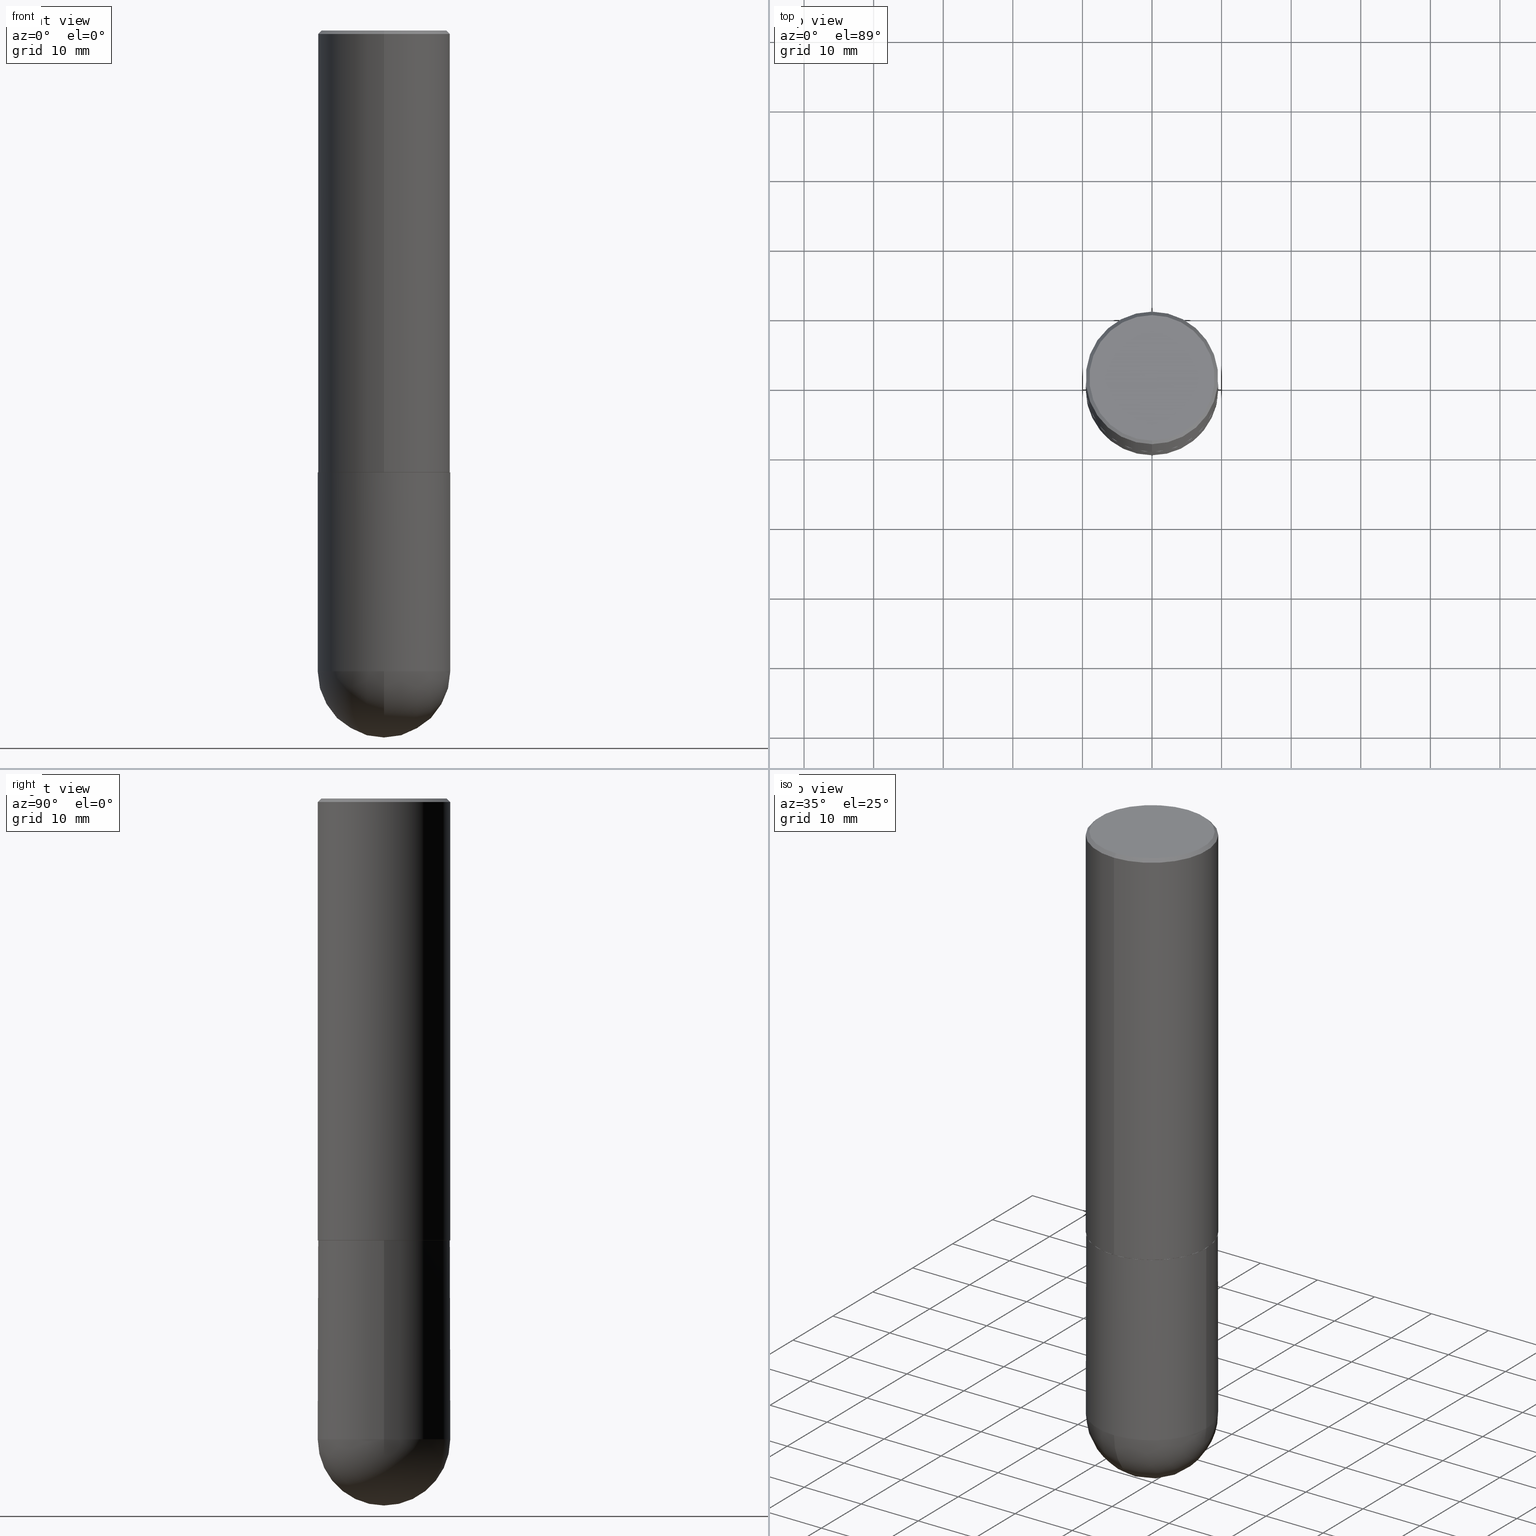
[diagram: canonical four-view strip — front | top / right | iso, engineering-drawing reading convention]
A machine part, canonical four-view strip (front | top / right | iso — engineering-drawing reading convention). The complete STEP part file that produces these views, byte-faithful:
ISO-10303-21;
HEADER;
FILE_DESCRIPTION (( 'STEP AP203' ),
    '1' );
FILE_NAME ('30940.STEP',
    '2024-02-21T16:46:39',
    ( '' ),
    ( '' ),
    'SwSTEP 2.0',
    'SolidWorks 2023',
    '' );
FILE_SCHEMA (( 'CONFIG_CONTROL_DESIGN' ));
ENDSEC;

DATA;
#1 = CARTESIAN_POINT ( 'NONE',  ( 2.618611004132350411E-15, 0.3749999999999999445, -0.02000000000000139513 ) ) ;
#2 = EDGE_CURVE ( 'NONE', #301, #194, #386, .T. ) ;
#3 = DIRECTION ( 'NONE',  ( -6.982962677686265922E-15, -1.000000000000000000, 3.494488891895536035E-15 ) ) ;
#4 = DIRECTION ( 'NONE',  ( 2.445579214634029192E-29, -3.491323227660272783E-15, -1.000000000000000000 ) ) ;
#5 = DIRECTION ( 'NONE',  ( -2.445579214634029192E-29, 3.491323227660272783E-15, 1.000000000000000000 ) ) ;
#6 = DIRECTION ( 'NONE',  ( -4.851104656540957175E-15, -0.7071067811865490160, -0.7071067811865460184 ) ) ;
#7 = APPROVAL_PERSON_ORGANIZATION ( #340, #211, #141 ) ;
#8 = CARTESIAN_POINT ( 'NONE',  ( 4.891158429268078912E-31, -6.982646455320575000E-17, -0.02000000000000008715 ) ) ;
#9 = LINE ( 'NONE', #128, #226 ) ;
#10 = CARTESIAN_POINT ( 'NONE',  ( 6.113672015462842613E-29, -8.728703347107864943E-15, -2.500000000000000000 ) ) ;
#11 = CYLINDRICAL_SURFACE ( 'NONE', #352, 0.3750000000000001110 ) ;
#12 = FACE_OUTER_BOUND ( 'NONE', #148, .T. ) ;
#13 = AXIS2_PLACEMENT_3D ( 'NONE', #245, #341, #19 ) ;
#14 = APPROVAL_PERSON_ORGANIZATION ( #210, #328, #244 ) ;
#15 = ORIENTED_EDGE ( 'NONE', *, *, #27, .T. ) ;
#16 = EDGE_CURVE ( 'NONE', #88, #28, #69, .T. ) ;
#17 = AXIS2_PLACEMENT_3D ( 'NONE', #172, #281, #31 ) ;
#18 = VERTEX_POINT ( 'NONE', #180 ) ;
#19 = DIRECTION ( 'NONE',  ( 1.000000000000000000, -6.982962677686265922E-15, 0.000000000000000000 ) ) ;
#20 = ORIENTED_EDGE ( 'NONE', *, *, #398, .T. ) ;
#21 = FACE_OUTER_BOUND ( 'NONE', #166, .T. ) ;
#22 = LOCAL_TIME ( 11, 46, 39.00000000000000000, #376 ) ;
#23 = DATE_AND_TIME ( #364, #22 ) ;
#24 = ORIENTED_EDGE ( 'NONE', *, *, #81, .F. ) ;
#25 = CARTESIAN_POINT ( 'NONE',  ( 2.478951750578623420E-15, 0.3549999999999998157, -1.156211816997397957E-15 ) ) ;
#26 = PERSON_AND_ORGANIZATION_ROLE ( 'creator' ) ;
#27 = EDGE_CURVE ( 'NONE', #111, #194, #61, .T. ) ;
#28 = VERTEX_POINT ( 'NONE', #345 ) ;
#29 = CARTESIAN_POINT ( 'NONE',  ( 2.618611004132438763E-15, 0.3749999999999873990, -3.625000000000000888 ) ) ;
#30 = SPHERICAL_SURFACE ( 'NONE', #106, 0.3750000000000003886 ) ;
#31 = DIRECTION ( 'NONE',  ( 1.000000000000000000, -6.982962677686265922E-15, 0.000000000000000000 ) ) ;
#32 = CIRCLE ( 'NONE', #97, 0.3750000000000002776 ) ;
#33 = FACE_OUTER_BOUND ( 'NONE', #314, .T. ) ;
#34 = ADVANCED_FACE ( 'NONE', ( #49 ), #171, .F. ) ;
#35 = CARTESIAN_POINT ( 'NONE',  ( 0.3750000000000000555, -1.134731435124021338E-14, -2.500000000000000000 ) ) ;
#36 = CARTESIAN_POINT ( 'NONE',  ( 6.111502457370440261E-29, -8.724816745923021924E-15, -2.499000000000000110 ) ) ;
#37 = CARTESIAN_POINT ( 'NONE',  ( 6.113672015462842613E-29, -8.728703347107864943E-15, -2.500000000000000000 ) ) ;
#38 = CARTESIAN_POINT ( 'NONE',  ( 2.664535259100376486E-15, 0.3750000000000001665, -1.309246210372602885E-15 ) ) ;
#39 = AXIS2_PLACEMENT_3D ( 'NONE', #312, #59, #350 ) ;
#40 = CARTESIAN_POINT ( 'NONE',  ( 0.000000000000000000, 0.000000000000000000, 0.000000000000000000 ) ) ;
#41 = DIRECTION ( 'NONE',  ( 1.000000000000000000, -6.982962677686264344E-15, 0.000000000000000000 ) ) ;
#42 = EDGE_LOOP ( 'NONE', ( #78, #80, #182, #280, #337 ) ) ;
#43 = ORIENTED_EDGE ( 'NONE', *, *, #356, .F. ) ;
#44 = DIRECTION ( 'NONE',  ( 0.000000000000000000, 0.000000000000000000, 1.000000000000000000 ) ) ;
#45 = CC_DESIGN_DATE_AND_TIME_ASSIGNMENT ( #305, #399, ( #362 ) ) ;
#46 = ORIENTED_EDGE ( 'NONE', *, *, #191, .T. ) ;
#47 = AXIS2_PLACEMENT_3D ( 'NONE', #225, #121, #95 ) ;
#48 = PERSON_AND_ORGANIZATION_ROLE ( 'design_supplier' ) ;
#49 = FACE_OUTER_BOUND ( 'NONE', #299, .T. ) ;
#50 = PERSON_AND_ORGANIZATION_ROLE ( 'design_owner' ) ;
#51 = ORIENTED_EDGE ( 'NONE', *, *, #321, .F. ) ;
#52 = EDGE_CURVE ( 'NONE', #18, #397, #365, .T. ) ;
#53 = ORIENTED_EDGE ( 'NONE', *, *, #191, .F. ) ;
#54 = LINE ( 'NONE', #1, #378 ) ;
#55 = AXIS2_PLACEMENT_3D ( 'NONE', #379, #277, #241 ) ;
#56 = AXIS2_PLACEMENT_3D ( 'NONE', #8, #4, #255 ) ;
#57 = ORIENTED_EDGE ( 'NONE', *, *, #339, .F. ) ;
#58 = DIRECTION ( 'NONE',  ( -2.445579214634028631E-29, 3.491323227660273177E-15, 1.000000000000000000 ) ) ;
#59 = DIRECTION ( 'NONE',  ( -2.445468806185136597E-29, 3.491481338843145583E-15, 1.000000000000000000 ) ) ;
#60 = CARTESIAN_POINT ( 'NONE',  ( -2.664535259100290106E-15, -0.3750000000000131006, -3.624999999999998668 ) ) ;
#61 = CIRCLE ( 'NONE', #198, 0.3750000000000003886 ) ;
#62 = CARTESIAN_POINT ( 'NONE',  ( 2.548781377355487113E-15, 0.3549999999999998157, -1.073003888175400197E-15 ) ) ;
#63 = CARTESIAN_POINT ( 'NONE',  ( 6.113948036585074240E-29, -8.728308069150681957E-15, -2.500000000000000000 ) ) ;
#64 = CARTESIAN_POINT ( 'NONE',  ( 9.466789814748773816E-29, -1.441714559602862136E-14, -4.000000000000000000 ) ) ;
#65 = DIRECTION ( 'NONE',  ( 6.982962677686265922E-15, 1.000000000000000000, 0.000000000000000000 ) ) ;
#66 = CIRCLE ( 'NONE', #288, 0.3549999999999998157 ) ;
#67 = ADVANCED_FACE ( 'NONE', ( #269 ), #366, .T. ) ;
#68 = ORIENTED_EDGE ( 'NONE', *, *, #297, .T. ) ;
#69 = CIRCLE ( 'NONE', #55, 0.3549999999999998157 ) ;
#70 = CONICAL_SURFACE ( 'NONE', #47, 0.3739999999999999991, 0.7853981633976873100 ) ;
#71 = ORIENTED_EDGE ( 'NONE', *, *, #333, .F. ) ;
#72 = PERSON ( 'UNSPECIFIED', 'UNSPECIFIED', 'UNSPECIFIED', ('UNSPECIFIED'), ('UNSPECIFIED'), ('UNSPECIFIED') ) ;
#73 = COORDINATED_UNIVERSAL_TIME_OFFSET ( 5, 0, .BEHIND. ) ;
#74 = ORIENTED_EDGE ( 'NONE', *, *, #155, .F. ) ;
#75 = LINE ( 'NONE', #112, #263 ) ;
#76 = AXIS2_PLACEMENT_3D ( 'NONE', #215, #401, #404 ) ;
#77 = APPROVAL_DATE_TIME ( #395, #116 ) ;
#78 = ORIENTED_EDGE ( 'NONE', *, *, #123, .F. ) ;
#79 = CARTESIAN_POINT ( 'NONE',  ( 2.618611004132411153E-15, 0.3749999999999912847, -2.500000000000001332 ) ) ;
#80 = ORIENTED_EDGE ( 'NONE', *, *, #2, .T. ) ;
#81 = EDGE_CURVE ( 'NONE', #397, #369, #235, .T. ) ;
#82 = DIRECTION ( 'NONE',  ( 1.000000000000000000, 0.000000000000000000, 0.000000000000000000 ) ) ;
#83 = DIRECTION ( 'NONE',  ( -7.105427357600999492E-15, -1.000000000000000000, 0.000000000000000000 ) ) ;
#84 = PLANE ( 'NONE',  #219 ) ;
#85 = DATE_TIME_ROLE ( 'creation_date' ) ;
#86 = AXIS2_PLACEMENT_3D ( 'NONE', #342, #303, #334 ) ;
#87 = DATE_AND_TIME ( #405, #259 ) ;
#88 = VERTEX_POINT ( 'NONE', #62 ) ;
#89 = CARTESIAN_POINT ( 'NONE',  ( 0.000000000000000000, 0.000000000000000000, 0.000000000000000000 ) ) ;
#90 = DIRECTION ( 'NONE',  ( -2.445468806185136877E-29, 3.491481338843145188E-15, 1.000000000000000000 ) ) ;
#91 = AXIS2_PLACEMENT_3D ( 'NONE', #92, #382, #65 ) ;
#92 = CARTESIAN_POINT ( 'NONE',  ( 8.533704644507233916E-29, -1.313080222144645289E-14, -3.624999999999999556 ) ) ;
#93 = CARTESIAN_POINT ( 'NONE',  ( -0.3750000000000001110, 2.664535259100376486E-15, -1.844600658845590159E-29 ) ) ;
#94 = CC_DESIGN_PERSON_AND_ORGANIZATION_ASSIGNMENT ( #104, #48, ( #125 ) ) ;
#95 = DIRECTION ( 'NONE',  ( -6.982962677686266711E-15, -1.000000000000000000, 2.921762560068730595E-15 ) ) ;
#96 = DIRECTION ( 'NONE',  ( -2.445579214634028911E-29, 3.491323227660273177E-15, 1.000000000000000000 ) ) ;
#97 = AXIS2_PLACEMENT_3D ( 'NONE', #36, #222, #127 ) ;
#98 = ORIENTED_EDGE ( 'NONE', *, *, #290, .T. ) ;
#99 = EDGE_CURVE ( 'NONE', #327, #369, #358, .T. ) ;
#100 = ORIENTED_EDGE ( 'NONE', *, *, #297, .F. ) ;
#101 = ORIENTED_EDGE ( 'NONE', *, *, #52, .T. ) ;
#102 = PERSON_AND_ORGANIZATION ( #72, #130 ) ;
#103 = ORIENTED_EDGE ( 'NONE', *, *, #271, .T. ) ;
#104 = PERSON_AND_ORGANIZATION ( #72, #130 ) ;
#105 = CARTESIAN_POINT ( 'NONE',  ( -2.618611004132351200E-15, -0.3750000000000001665, 1.309246210372602885E-15 ) ) ;
#106 = AXIS2_PLACEMENT_3D ( 'NONE', #289, #320, #120 ) ;
#107 =( CONVERSION_BASED_UNIT ( 'INCH', #270 ) LENGTH_UNIT ( ) NAMED_UNIT ( #230 ) );
#108 = AXIS2_PLACEMENT_3D ( 'NONE', #89, #216, #351 ) ;
#109 = ORIENTED_EDGE ( 'NONE', *, *, #356, .T. ) ;
#110 = DIRECTION ( 'NONE',  ( 6.982962677686265922E-15, 1.000000000000000000, -3.491323227660273177E-15 ) ) ;
#111 = VERTEX_POINT ( 'NONE', #64 ) ;
#112 = CARTESIAN_POINT ( 'NONE',  ( -2.611628041454602471E-15, -0.3740000000000087699, -2.499999999999999112 ) ) ;
#113 = DATE_AND_TIME ( #335, #186 ) ;
#114 = ORIENTED_EDGE ( 'NONE', *, *, #161, .F. ) ;
#115 = CARTESIAN_POINT ( 'NONE',  ( 2.660982545421636724E-15, 0.3739999999999912839, -2.500000000000001332 ) ) ;
#116 = APPROVAL ( #266, 'UNSPECIFIED' ) ;
#117 = CIRCLE ( 'NONE', #359, 0.3750000000000000555 ) ;
#118 = DIRECTION ( 'NONE',  ( 1.000000000000000000, -6.982962677686264344E-15, 0.000000000000000000 ) ) ;
#119 = CARTESIAN_POINT ( 'NONE',  ( 6.111502457370440261E-29, -8.724816745923021924E-15, -2.499000000000000110 ) ) ;
#120 = DIRECTION ( 'NONE',  ( 6.982962677686266711E-15, 1.000000000000000000, -2.913971193241878005E-15 ) ) ;
#121 = DIRECTION ( 'NONE',  ( -2.445579214634029192E-29, 3.491323227660272783E-15, 1.000000000000000000 ) ) ;
#122 = DIRECTION ( 'NONE',  ( 5.024295867789263036E-15, 0.7071067811867189912, 0.7071067811863760433 ) ) ;
#123 = EDGE_CURVE ( 'NONE', #301, #228, #160, .T. ) ;
#124 = AXIS2_PLACEMENT_3D ( 'NONE', #355, #152, #412 ) ;
#125 = PRODUCT_DEFINITION_FORMATION_WITH_SPECIFIED_SOURCE ( 'ANY', '', #349, .NOT_KNOWN. ) ;
#126 = DIRECTION ( 'NONE',  ( -1.000000000000000000, 6.982962677686266711E-15, -4.883557194083113462E-29 ) ) ;
#127 = DIRECTION ( 'NONE',  ( -6.982962677686266711E-15, -1.000000000000000000, 2.913971193241878794E-15 ) ) ;
#128 = CARTESIAN_POINT ( 'NONE',  ( 0.3750000000000001110, -2.618611004132350411E-15, 1.828566290923476483E-29 ) ) ;
#129 = CARTESIAN_POINT ( 'NONE',  ( -2.611628041454602471E-15, -0.3740000000000087699, -2.499999999999999112 ) ) ;
#130 = ORGANIZATION ( 'UNSPECIFIED', 'UNSPECIFIED', '' ) ;
#131 = CC_DESIGN_APPROVAL ( #211, ( #362 ) ) ;
#132 = ORIENTED_EDGE ( 'NONE', *, *, #323, .T. ) ;
#133 = CLOSED_SHELL ( 'NONE', ( #167, #187, #140, #391, #223 ) ) ;
#134 = ORIENTED_EDGE ( 'NONE', *, *, #323, .F. ) ;
#135 = EDGE_CURVE ( 'NONE', #28, #397, #282, .T. ) ;
#136 = ORIENTED_EDGE ( 'NONE', *, *, #168, .F. ) ;
#137 = APPLICATION_PROTOCOL_DEFINITION ( 'international standard', 'config_control_design', 1994, #195 ) ;
#138 = DIRECTION ( 'NONE',  ( -2.445579214634028911E-29, 3.491323227660273177E-15, 1.000000000000000000 ) ) ;
#139 = CARTESIAN_POINT ( 'NONE',  ( 0.000000000000000000, 0.000000000000000000, 0.000000000000000000 ) ) ;
#140 = ADVANCED_FACE ( 'NONE', ( #357 ), #30, .T. ) ;
#141 = APPROVAL_ROLE ( '' ) ;
#142 = ORIENTED_EDGE ( 'NONE', *, *, #16, .T. ) ;
#143 = DIRECTION ( 'NONE',  ( 2.445579214634028631E-29, -3.491323227660273177E-15, -1.000000000000000000 ) ) ;
#144 = APPROVAL_PERSON_ORGANIZATION ( #373, #116, #275 ) ;
#145 = APPROVAL_DATE_TIME ( #23, #328 ) ;
#146 = VERTEX_POINT ( 'NONE', #35 ) ;
#147 = CARTESIAN_POINT ( 'NONE',  ( 2.618611004132350411E-15, 0.3749999999999999445, -0.02000000000000139513 ) ) ;
#148 = EDGE_LOOP ( 'NONE', ( #74, #68, #132, #406 ) ) ;
#149 = EDGE_CURVE ( 'NONE', #387, #146, #9, .T. ) ;
#150 = DIRECTION ( 'NONE',  ( -2.445579214634029192E-29, 3.491323227660272783E-15, 1.000000000000000000 ) ) ;
#151 = DESIGN_CONTEXT ( 'detailed design', #389, 'design' ) ;
#152 = DIRECTION ( 'NONE',  ( -2.445468806185136597E-29, 3.491481338843145583E-15, 1.000000000000000000 ) ) ;
#153 = CARTESIAN_POINT ( 'NONE',  ( 0.3750000000000001110, -1.331127260433948773E-14, -3.624999999999999556 ) ) ;
#154 = CARTESIAN_POINT ( 'NONE',  ( -2.572686749164323547E-15, -0.3750000000000001110, -0.01999999999999877570 ) ) ;
#155 = EDGE_CURVE ( 'NONE', #400, #327, #318, .T. ) ;
#156 = SPHERICAL_SURFACE ( 'NONE', #394, 0.3750000000000003886 ) ;
#157 = DIRECTION ( 'NONE',  ( -2.445468806185136597E-29, 3.491481338843145583E-15, 1.000000000000000000 ) ) ;
#158 = VECTOR ( 'NONE', #96, 39.37007874015748143 ) ;
#159 = CONICAL_SURFACE ( 'NONE', #56, 0.3750000000000000555, 0.7853981633974469467 ) ;
#160 = LINE ( 'NONE', #93, #402 ) ;
#161 = EDGE_CURVE ( 'NONE', #111, #307, #218, .T. ) ;
#162 = DIRECTION ( 'NONE',  ( -2.445468806185136597E-29, 3.491481338843145583E-15, 1.000000000000000000 ) ) ;
#163 = CARTESIAN_POINT ( 'NONE',  ( -0.3750000000000000555, -8.028126341106755702E-15, -2.500000000000000000 ) ) ;
#164 = CLOSED_SHELL ( 'NONE', ( #311, #315, #67, #261, #192, #296, #34, #353 ) ) ;
#165 = AXIS2_PLACEMENT_3D ( 'NONE', #37, #249, #118 ) ;
#166 = EDGE_LOOP ( 'NONE', ( #142, #98 ) ) ;
#167 = ADVANCED_FACE ( 'NONE', ( #221 ), #220, .T. ) ;
#168 = EDGE_CURVE ( 'NONE', #232, #400, #304, .T. ) ;
#169 = ORIENTED_EDGE ( 'NONE', *, *, #368, .F. ) ;
#170 = CIRCLE ( 'NONE', #258, 0.3750000000000002776 ) ;
#171 = PLANE ( 'NONE',  #317 ) ;
#172 = CARTESIAN_POINT ( 'NONE',  ( 8.864824422421120163E-29, -1.265661985330640259E-14, -3.624999999999999556 ) ) ;
#173 = CALENDAR_DATE ( 2024, 21, 2 ) ;
#174 = ORIENTED_EDGE ( 'NONE', *, *, #99, .T. ) ;
#175 = DIRECTION ( 'NONE',  ( -6.982962677686266711E-15, -1.000000000000000000, 2.921762560068730595E-15 ) ) ;
#176 = EDGE_LOOP ( 'NONE', ( #302, #20, #101, #169 ) ) ;
#177 = CARTESIAN_POINT ( 'NONE',  ( -0.3750000000000001110, -8.028126341106758858E-15, -3.624999999999999556 ) ) ;
#178 = LOCAL_TIME ( 11, 46, 39.00000000000000000, #181 ) ;
#179 = APPROVAL_STATUS ( 'not_yet_approved' ) ;
#180 = CARTESIAN_POINT ( 'NONE',  ( -2.618611004132290852E-15, -0.3750000000000090483, -2.498999999999999222 ) ) ;
#181 = COORDINATED_UNIVERSAL_TIME_OFFSET ( 5, 0, .BEHIND. ) ;
#182 = ORIENTED_EDGE ( 'NONE', *, *, #333, .T. ) ;
#183 = FACE_OUTER_BOUND ( 'NONE', #233, .T. ) ;
#184 = CARTESIAN_POINT ( 'NONE',  ( 4.891158429268078912E-31, -6.982646455320575000E-17, -0.02000000000000008715 ) ) ;
#185 = AXIS2_PLACEMENT_3D ( 'NONE', #184, #285, #381 ) ;
#186 = LOCAL_TIME ( 11, 46, 39.00000000000000000, #73 ) ;
#187 = ADVANCED_FACE ( 'NONE', ( #33 ), #156, .T. ) ;
#188 = DIRECTION ( 'NONE',  ( -2.445579214634029192E-29, 3.491323227660272783E-15, 1.000000000000000000 ) ) ;
#189 = CARTESIAN_POINT ( 'NONE',  ( 4.891158429268078912E-31, -6.982646455320575000E-17, -0.02000000000000008715 ) ) ;
#190 = DIRECTION ( 'NONE',  ( -2.445468806185136877E-29, 3.491481338843145188E-15, 1.000000000000000000 ) ) ;
#191 = EDGE_CURVE ( 'NONE', #146, #228, #227, .T. ) ;
#192 = ADVANCED_FACE ( 'NONE', ( #247 ), #384, .T. ) ;
#193 = CC_DESIGN_PERSON_AND_ORGANIZATION_ASSIGNMENT ( #279, #50, ( #349 ) ) ;
#194 = VERTEX_POINT ( 'NONE', #60 ) ;
#195 = APPLICATION_CONTEXT ( 'configuration controlled 3d designs of mechanical parts and assemblies' ) ;
#196 = EDGE_LOOP ( 'NONE', ( #310, #371, #51, #71 ) ) ;
#197 = CARTESIAN_POINT ( 'NONE',  ( 0.000000000000000000, 0.000000000000000000, 0.000000000000000000 ) ) ;
#198 = AXIS2_PLACEMENT_3D ( 'NONE', #214, #374, #83 ) ;
#199 = ORIENTED_EDGE ( 'NONE', *, *, #271, .F. ) ;
#200 =( LENGTH_UNIT ( ) NAMED_UNIT ( * ) SI_UNIT ( $, .METRE. ) );
#201 = PERSON_AND_ORGANIZATION ( #72, #130 ) ;
#202 = ORIENTED_EDGE ( 'NONE', *, *, #290, .F. ) ;
#203 = MANIFOLD_SOLID_BREP ( 'Body-Move/Copy2[2]', #164 ) ;
#204 = ORIENTED_EDGE ( 'NONE', *, *, #135, .T. ) ;
#205 = DIRECTION ( 'NONE',  ( -4.937700262165728178E-15, -0.7071067811867141062, 0.7071067811863809283 ) ) ;
#206 = ORIENTED_EDGE ( 'NONE', *, *, #52, .F. ) ;
#207 = DIRECTION ( 'NONE',  ( 4.937700262164540942E-15, 0.7071067811865441310, -0.7071067811865509034 ) ) ;
#208 = PRODUCT_DEFINITION_SHAPE ( 'NONE', 'NONE',  #347 ) ;
#209 = CONICAL_SURFACE ( 'NONE', #76, 0.3739999999999999991, 0.7853981633976873100 ) ;
#210 = PERSON_AND_ORGANIZATION ( #72, #130 ) ;
#211 = APPROVAL ( #179, 'UNSPECIFIED' ) ;
#212 = UNCERTAINTY_MEASURE_WITH_UNIT (LENGTH_MEASURE( 1.000000000000000082E-05 ), #107, 'distance_accuracy_value', 'NONE');
#213 = SHAPE_DEFINITION_REPRESENTATION ( #208, #246 ) ;
#214 = CARTESIAN_POINT ( 'NONE',  ( 8.533704644507233916E-29, -1.313080222144645289E-14, -3.624999999999999556 ) ) ;
#215 = CARTESIAN_POINT ( 'NONE',  ( 6.113948036585074240E-29, -8.728308069150681957E-15, -2.500000000000000000 ) ) ;
#216 = DIRECTION ( 'NONE',  ( -2.445579214634029192E-29, 3.491323227660272783E-15, 1.000000000000000000 ) ) ;
#217 = CC_DESIGN_PERSON_AND_ORGANIZATION_ASSIGNMENT ( #201, #26, ( #347 ) ) ;
#218 = CIRCLE ( 'NONE', #91, 0.3750000000000003886 ) ;
#219 = AXIS2_PLACEMENT_3D ( 'NONE', #79, #239, #283 ) ;
#220 = CYLINDRICAL_SURFACE ( 'NONE', #124, 0.3750000000000001110 ) ;
#221 = FACE_OUTER_BOUND ( 'NONE', #273, .T. ) ;
#222 = DIRECTION ( 'NONE',  ( -2.445579214634029192E-29, 3.491323227660272783E-15, 1.000000000000000000 ) ) ;
#223 = ADVANCED_FACE ( 'NONE', ( #291 ), #11, .T. ) ;
#224 = CARTESIAN_POINT ( 'NONE',  ( 2.657429831742835431E-15, 0.3739999999999912839, -2.500000000000001332 ) ) ;
#225 = CARTESIAN_POINT ( 'NONE',  ( 6.113948036585074240E-29, -8.728308069150681957E-15, -2.500000000000000000 ) ) ;
#226 = VECTOR ( 'NONE', #190, 39.37007874015748143 ) ;
#227 = CIRCLE ( 'NONE', #165, 0.3750000000000000555 ) ;
#228 = VERTEX_POINT ( 'NONE', #163 ) ;
#229 = ORIENTED_EDGE ( 'NONE', *, *, #2, .F. ) ;
#230 = DIMENSIONAL_EXPONENTS ( 1.000000000000000000, 0.000000000000000000, 0.000000000000000000, 0.000000000000000000, 0.000000000000000000, 0.000000000000000000, 0.000000000000000000 ) ;
#231 = CIRCLE ( 'NONE', #272, 0.3750000000000000555 ) ;
#232 = VERTEX_POINT ( 'NONE', #129 ) ;
#233 = EDGE_LOOP ( 'NONE', ( #103, #174, #24, #206 ) ) ;
#234 = COORDINATED_UNIVERSAL_TIME_OFFSET ( 5, 0, .BEHIND. ) ;
#235 = CIRCLE ( 'NONE', #343, 0.3750000000000000555 ) ;
#236 = CIRCLE ( 'NONE', #411, 0.3739999999999999991 ) ;
#237 = ORIENTED_EDGE ( 'NONE', *, *, #339, .T. ) ;
#238 = EDGE_LOOP ( 'NONE', ( #260, #363, #237, #293 ) ) ;
#239 = DIRECTION ( 'NONE',  ( 2.438088387897960049E-29, -3.491481338843145188E-15, -1.000000000000000000 ) ) ;
#240 = APPROVAL_DATE_TIME ( #87, #211 ) ;
#241 = DIRECTION ( 'NONE',  ( -6.982962677686266711E-15, -1.000000000000000000, 3.491323227660273177E-15 ) ) ;
#242 = DIRECTION ( 'NONE',  ( -2.445579214634029192E-29, 3.491323227660272783E-15, 1.000000000000000000 ) ) ;
#243 = EDGE_CURVE ( 'NONE', #228, #146, #231, .T. ) ;
#244 = APPROVAL_ROLE ( '' ) ;
#245 = CARTESIAN_POINT ( 'NONE',  ( 8.864824422421120163E-29, -1.265661985330640259E-14, -3.624999999999999556 ) ) ;
#246 = ADVANCED_BREP_SHAPE_REPRESENTATION ( '30940', ( #354, #203, #306 ), #388 ) ;
#247 = FACE_OUTER_BOUND ( 'NONE', #176, .T. ) ;
#248 = DIRECTION ( 'NONE',  ( -6.982962677686266711E-15, -1.000000000000000000, 2.913971193241878794E-15 ) ) ;
#249 = DIRECTION ( 'NONE',  ( -2.445468806185136597E-29, 3.491481338843145583E-15, 1.000000000000000000 ) ) ;
#250 = VECTOR ( 'NONE', #122, 39.37007874015748143 ) ;
#251 = AXIS2_PLACEMENT_3D ( 'NONE', #139, #242, #370 ) ;
#252 = DIRECTION ( 'NONE',  ( 6.982962677686266711E-15, 1.000000000000000000, -2.913971193241878005E-15 ) ) ;
#253 = DIRECTION ( 'NONE',  ( -2.445579214634029192E-29, 3.491323227660272783E-15, 1.000000000000000000 ) ) ;
#254 = PRODUCT_RELATED_PRODUCT_CATEGORY ( 'detail', '', ( #349 ) ) ;
#255 = DIRECTION ( 'NONE',  ( 6.982962677686265922E-15, 1.000000000000000000, -3.494488891895536035E-15 ) ) ;
#256 = ORIENTED_EDGE ( 'NONE', *, *, #321, .T. ) ;
#257 = CARTESIAN_POINT ( 'NONE',  ( 6.113948036585074240E-29, -8.728308069150681957E-15, -2.500000000000000000 ) ) ;
#258 = AXIS2_PLACEMENT_3D ( 'NONE', #119, #410, #248 ) ;
#259 = LOCAL_TIME ( 11, 46, 39.00000000000000000, #313 ) ;
#260 = ORIENTED_EDGE ( 'NONE', *, *, #135, .F. ) ;
#261 = ADVANCED_FACE ( 'NONE', ( #286 ), #159, .T. ) ;
#262 = VECTOR ( 'NONE', #6, 39.37007874015748143 ) ;
#263 = VECTOR ( 'NONE', #205, 39.37007874015748143 ) ;
#264 = CC_DESIGN_SECURITY_CLASSIFICATION ( #362, ( #125 ) ) ;
#265 = CC_DESIGN_PERSON_AND_ORGANIZATION_ASSIGNMENT ( #102, #276, ( #362 ) ) ;
#266 = APPROVAL_STATUS ( 'not_yet_approved' ) ;
#267 = DIRECTION ( 'NONE',  ( -6.982962677686265922E-15, -1.000000000000000000, 3.491323227660273177E-15 ) ) ;
#268 = MECHANICAL_CONTEXT ( 'NONE', #195, 'mechanical' ) ;
#269 = FACE_OUTER_BOUND ( 'NONE', #329, .T. ) ;
#270 = LENGTH_MEASURE_WITH_UNIT ( LENGTH_MEASURE( 0.02539999999999999897 ), #200 );
#271 = EDGE_CURVE ( 'NONE', #18, #327, #32, .T. ) ;
#272 = AXIS2_PLACEMENT_3D ( 'NONE', #10, #157, #41 ) ;
#273 = EDGE_LOOP ( 'NONE', ( #109, #360, #53, #403, #256 ) ) ;
#274 = CARTESIAN_POINT ( 'NONE',  ( 4.891158429268078912E-31, -6.982646455320575000E-17, -0.02000000000000008715 ) ) ;
#275 = APPROVAL_ROLE ( '' ) ;
#276 = PERSON_AND_ORGANIZATION_ROLE ( 'classification_officer' ) ;
#277 = DIRECTION ( 'NONE',  ( -2.445579214634029192E-29, 3.491323227660272783E-15, 1.000000000000000000 ) ) ;
#278 = FACE_OUTER_BOUND ( 'NONE', #409, .T. ) ;
#279 = PERSON_AND_ORGANIZATION ( #72, #130 ) ;
#280 = ORIENTED_EDGE ( 'NONE', *, *, #149, .T. ) ;
#281 = DIRECTION ( 'NONE',  ( -2.445468806185136597E-29, 3.491481338843145583E-15, 1.000000000000000000 ) ) ;
#282 = LINE ( 'NONE', #154, #262 ) ;
#283 = DIRECTION ( 'NONE',  ( -1.000000000000000000, 6.982962677686265922E-15, -4.876176775795935793E-29 ) ) ;
#284 = CC_DESIGN_DATE_AND_TIME_ASSIGNMENT ( #113, #85, ( #347 ) ) ;
#285 = DIRECTION ( 'NONE',  ( 2.445579214634029192E-29, -3.491323227660272783E-15, -1.000000000000000000 ) ) ;
#286 = FACE_OUTER_BOUND ( 'NONE', #238, .T. ) ;
#287 = CARTESIAN_POINT ( 'NONE',  ( 8.533704644507233916E-29, -1.313080222144645289E-14, -3.624999999999999556 ) ) ;
#288 = AXIS2_PLACEMENT_3D ( 'NONE', #292, #253, #385 ) ;
#289 = CARTESIAN_POINT ( 'NONE',  ( 8.533704644507233916E-29, -1.313080222144645289E-14, -3.624999999999999556 ) ) ;
#290 = EDGE_CURVE ( 'NONE', #28, #88, #66, .T. ) ;
#291 = FACE_OUTER_BOUND ( 'NONE', #42, .T. ) ;
#292 = CARTESIAN_POINT ( 'NONE',  ( -4.069831624396524765E-45, 5.810115492434890943E-31, 1.664158576439961372E-16 ) ) ;
#293 = ORIENTED_EDGE ( 'NONE', *, *, #368, .T. ) ;
#294 = VECTOR ( 'NONE', #138, 39.37007874015748143 ) ;
#295 = CC_DESIGN_APPROVAL ( #328, ( #125 ) ) ;
#296 = ADVANCED_FACE ( 'NONE', ( #12 ), #70, .T. ) ;
#297 = EDGE_CURVE ( 'NONE', #400, #232, #236, .T. ) ;
#298 = CIRCLE ( 'NONE', #86, 0.3750000000000001110 ) ;
#299 = EDGE_LOOP ( 'NONE', ( #136, #100 ) ) ;
#300 =( NAMED_UNIT ( * ) SI_UNIT ( $, .STERADIAN. ) SOLID_ANGLE_UNIT ( ) );
#301 = VERTEX_POINT ( 'NONE', #177 ) ;
#302 = ORIENTED_EDGE ( 'NONE', *, *, #99, .F. ) ;
#303 = DIRECTION ( 'NONE',  ( -2.445468806185136597E-29, 3.491481338843145583E-15, 1.000000000000000000 ) ) ;
#304 = CIRCLE ( 'NONE', #361, 0.3739999999999999991 ) ;
#305 = DATE_AND_TIME ( #377, #178 ) ;
#306 = AXIS2_PLACEMENT_3D ( 'NONE', #197, #44, #82 ) ;
#307 = VERTEX_POINT ( 'NONE', #29 ) ;
#308 = PLANE ( 'NONE',  #319 ) ;
#309 = APPLICATION_PROTOCOL_DEFINITION ( 'international standard', 'config_control_design', 1994, #389 ) ;
#310 = ORIENTED_EDGE ( 'NONE', *, *, #27, .F. ) ;
#311 = ADVANCED_FACE ( 'NONE', ( #407 ), #209, .T. ) ;
#312 = CARTESIAN_POINT ( 'NONE',  ( 8.864824422421120163E-29, -1.265661985330640259E-14, -3.624999999999999556 ) ) ;
#313 = COORDINATED_UNIVERSAL_TIME_OFFSET ( 5, 0, .BEHIND. ) ;
#314 = EDGE_LOOP ( 'NONE', ( #114, #15, #229, #43 ) ) ;
#315 = ADVANCED_FACE ( 'NONE', ( #183 ), #372, .T. ) ;
#316 = CARTESIAN_POINT ( 'NONE',  ( 2.664535259100408040E-15, 0.3749999999999915623, -2.499000000000001442 ) ) ;
#317 = AXIS2_PLACEMENT_3D ( 'NONE', #348, #58, #267 ) ;
#318 = LINE ( 'NONE', #224, #250 ) ;
#319 = AXIS2_PLACEMENT_3D ( 'NONE', #25, #143, #110 ) ;
#320 = DIRECTION ( 'NONE',  ( -1.000000000000000000, 6.982962677686266711E-15, -4.883557194083113462E-29 ) ) ;
#321 = EDGE_CURVE ( 'NONE', #387, #307, #344, .T. ) ;
#322 = DIRECTION ( 'NONE',  ( -6.982962677686266711E-15, -1.000000000000000000, 2.921762560068730595E-15 ) ) ;
#323 = EDGE_CURVE ( 'NONE', #232, #18, #75, .T. ) ;
#324 = DIRECTION ( 'NONE',  ( 1.000000000000000000, -6.982962677686265922E-15, 4.876176775795935793E-29 ) ) ;
#325 = EDGE_LOOP ( 'NONE', ( #332, #390, #199, #134 ) ) ;
#326 = ORIENTED_EDGE ( 'NONE', *, *, #81, .T. ) ;
#327 = VERTEX_POINT ( 'NONE', #316 ) ;
#328 = APPROVAL ( #408, 'UNSPECIFIED' ) ;
#329 = EDGE_LOOP ( 'NONE', ( #202, #204, #326, #57 ) ) ;
#330 = CIRCLE ( 'NONE', #17, 0.3750000000000001110 ) ;
#331 = PERSON_AND_ORGANIZATION_ROLE ( 'creator' ) ;
#332 = ORIENTED_EDGE ( 'NONE', *, *, #168, .T. ) ;
#333 = EDGE_CURVE ( 'NONE', #194, #387, #298, .T. ) ;
#334 = DIRECTION ( 'NONE',  ( 1.000000000000000000, -6.982962677686265922E-15, 0.000000000000000000 ) ) ;
#335 = CALENDAR_DATE ( 2024, 21, 2 ) ;
#336 = SECURITY_CLASSIFICATION_LEVEL ( 'unclassified' ) ;
#337 = ORIENTED_EDGE ( 'NONE', *, *, #243, .F. ) ;
#338 =( NAMED_UNIT ( * ) PLANE_ANGLE_UNIT ( ) SI_UNIT ( $, .RADIAN. ) );
#339 = EDGE_CURVE ( 'NONE', #88, #369, #54, .T. ) ;
#340 = PERSON_AND_ORGANIZATION ( #72, #130 ) ;
#341 = DIRECTION ( 'NONE',  ( -2.445468806185136597E-29, 3.491481338843145583E-15, 1.000000000000000000 ) ) ;
#342 = CARTESIAN_POINT ( 'NONE',  ( 8.864824422421120163E-29, -1.265661985330640259E-14, -3.624999999999999556 ) ) ;
#343 = AXIS2_PLACEMENT_3D ( 'NONE', #189, #5, #3 ) ;
#344 = CIRCLE ( 'NONE', #39, 0.3750000000000001110 ) ;
#345 = CARTESIAN_POINT ( 'NONE',  ( -2.504081769186608216E-15, -0.3549999999999998157, 1.405835603463392225E-15 ) ) ;
#346 = CARTESIAN_POINT ( 'NONE',  ( -2.572686749164323547E-15, -0.3750000000000001110, -0.01999999999999877570 ) ) ;
#347 = PRODUCT_DEFINITION ( 'UNKNOWN', '', #125, #151 ) ;
#348 = CARTESIAN_POINT ( 'NONE',  ( 6.113948036585074240E-29, -8.728308069150681957E-15, -2.500000000000000000 ) ) ;
#349 = PRODUCT ( '30940', '30940', '', ( #268 ) ) ;
#350 = DIRECTION ( 'NONE',  ( 1.000000000000000000, -6.982962677686265922E-15, 0.000000000000000000 ) ) ;
#351 = DIRECTION ( 'NONE',  ( -6.982962677686266711E-15, -1.000000000000000000, 3.491323227660272783E-15 ) ) ;
#352 = AXIS2_PLACEMENT_3D ( 'NONE', #40, #162, #324 ) ;
#353 = ADVANCED_FACE ( 'NONE', ( #21 ), #308, .F. ) ;
#354 = MANIFOLD_SOLID_BREP ( 'Body-Move/Copy2[1]', #133 ) ;
#355 = CARTESIAN_POINT ( 'NONE',  ( 0.000000000000000000, 0.000000000000000000, 0.000000000000000000 ) ) ;
#356 = EDGE_CURVE ( 'NONE', #307, #301, #330, .T. ) ;
#357 = FACE_OUTER_BOUND ( 'NONE', #196, .T. ) ;
#358 = LINE ( 'NONE', #38, #158 ) ;
#359 = AXIS2_PLACEMENT_3D ( 'NONE', #274, #150, #375 ) ;
#360 = ORIENTED_EDGE ( 'NONE', *, *, #123, .T. ) ;
#361 = AXIS2_PLACEMENT_3D ( 'NONE', #63, #188, #322 ) ;
#362 = SECURITY_CLASSIFICATION ( '', '', #336 ) ;
#363 = ORIENTED_EDGE ( 'NONE', *, *, #16, .F. ) ;
#364 = CALENDAR_DATE ( 2024, 21, 2 ) ;
#365 = LINE ( 'NONE', #105, #294 ) ;
#366 = CONICAL_SURFACE ( 'NONE', #185, 0.3750000000000000555, 0.7853981633974469467 ) ;
#367 = CC_DESIGN_APPROVAL ( #116, ( #347 ) ) ;
#368 = EDGE_CURVE ( 'NONE', #369, #397, #117, .T. ) ;
#369 = VERTEX_POINT ( 'NONE', #147 ) ;
#370 = DIRECTION ( 'NONE',  ( -6.982962677686266711E-15, -1.000000000000000000, 3.491323227660272783E-15 ) ) ;
#371 = ORIENTED_EDGE ( 'NONE', *, *, #161, .T. ) ;
#372 = CYLINDRICAL_SURFACE ( 'NONE', #251, 0.3750000000000001665 ) ;
#373 = PERSON_AND_ORGANIZATION ( #72, #130 ) ;
#374 = DIRECTION ( 'NONE',  ( -1.000000000000000000, 7.105427357601001070E-15, -4.926315508542082329E-29 ) ) ;
#375 = DIRECTION ( 'NONE',  ( -6.982962677686265922E-15, -1.000000000000000000, 3.494488891895536035E-15 ) ) ;
#376 = COORDINATED_UNIVERSAL_TIME_OFFSET ( 5, 0, .BEHIND. ) ;
#377 = CALENDAR_DATE ( 2024, 21, 2 ) ;
#378 = VECTOR ( 'NONE', #207, 39.37007874015748143 ) ;
#379 = CARTESIAN_POINT ( 'NONE',  ( -4.069831624396524765E-45, 5.810115492434890943E-31, 1.664158576439961372E-16 ) ) ;
#380 = DIRECTION ( 'NONE',  ( -2.445579214634029192E-29, 3.491323227660272783E-15, 1.000000000000000000 ) ) ;
#381 = DIRECTION ( 'NONE',  ( 6.982962677686265922E-15, 1.000000000000000000, -3.494488891895536035E-15 ) ) ;
#382 = DIRECTION ( 'NONE',  ( 1.000000000000000000, -6.982962677686265922E-15, 4.883557194083112340E-29 ) ) ;
#383 = LOCAL_TIME ( 11, 46, 39.00000000000000000, #234 ) ;
#384 = CYLINDRICAL_SURFACE ( 'NONE', #108, 0.3750000000000001665 ) ;
#385 = DIRECTION ( 'NONE',  ( -6.982962677686266711E-15, -1.000000000000000000, 3.491323227660273177E-15 ) ) ;
#386 = CIRCLE ( 'NONE', #13, 0.3750000000000001110 ) ;
#387 = VERTEX_POINT ( 'NONE', #153 ) ;
#388 =( GEOMETRIC_REPRESENTATION_CONTEXT ( 3 ) GLOBAL_UNCERTAINTY_ASSIGNED_CONTEXT ( ( #212 ) ) GLOBAL_UNIT_ASSIGNED_CONTEXT ( ( #107, #338, #300 ) ) REPRESENTATION_CONTEXT ( 'NONE', 'WORKASPACE' ) );
#389 = APPLICATION_CONTEXT ( 'configuration controlled 3d designs of mechanical parts and assemblies' ) ;
#390 = ORIENTED_EDGE ( 'NONE', *, *, #155, .T. ) ;
#391 = ADVANCED_FACE ( 'NONE', ( #278 ), #84, .F. ) ;
#392 = ORIENTED_EDGE ( 'NONE', *, *, #243, .T. ) ;
#393 = CC_DESIGN_PERSON_AND_ORGANIZATION_ASSIGNMENT ( #396, #331, ( #125 ) ) ;
#394 = AXIS2_PLACEMENT_3D ( 'NONE', #287, #126, #252 ) ;
#395 = DATE_AND_TIME ( #173, #383 ) ;
#396 = PERSON_AND_ORGANIZATION ( #72, #130 ) ;
#397 = VERTEX_POINT ( 'NONE', #346 ) ;
#398 = EDGE_CURVE ( 'NONE', #327, #18, #170, .T. ) ;
#399 = DATE_TIME_ROLE ( 'classification_date' ) ;
#400 = VERTEX_POINT ( 'NONE', #115 ) ;
#401 = DIRECTION ( 'NONE',  ( -2.445579214634029192E-29, 3.491323227660272783E-15, 1.000000000000000000 ) ) ;
#402 = VECTOR ( 'NONE', #90, 39.37007874015748143 ) ;
#403 = ORIENTED_EDGE ( 'NONE', *, *, #149, .F. ) ;
#404 = DIRECTION ( 'NONE',  ( -6.982962677686266711E-15, -1.000000000000000000, 2.921762560068730595E-15 ) ) ;
#405 = CALENDAR_DATE ( 2024, 21, 2 ) ;
#406 = ORIENTED_EDGE ( 'NONE', *, *, #398, .F. ) ;
#407 = FACE_OUTER_BOUND ( 'NONE', #325, .T. ) ;
#408 = APPROVAL_STATUS ( 'not_yet_approved' ) ;
#409 = EDGE_LOOP ( 'NONE', ( #46, #392 ) ) ;
#410 = DIRECTION ( 'NONE',  ( -2.445579214634029192E-29, 3.491323227660272783E-15, 1.000000000000000000 ) ) ;
#411 = AXIS2_PLACEMENT_3D ( 'NONE', #257, #380, #175 ) ;
#412 = DIRECTION ( 'NONE',  ( 1.000000000000000000, -6.982962677686265922E-15, 4.876176775795935793E-29 ) ) ;
ENDSEC;
END-ISO-10303-21;
